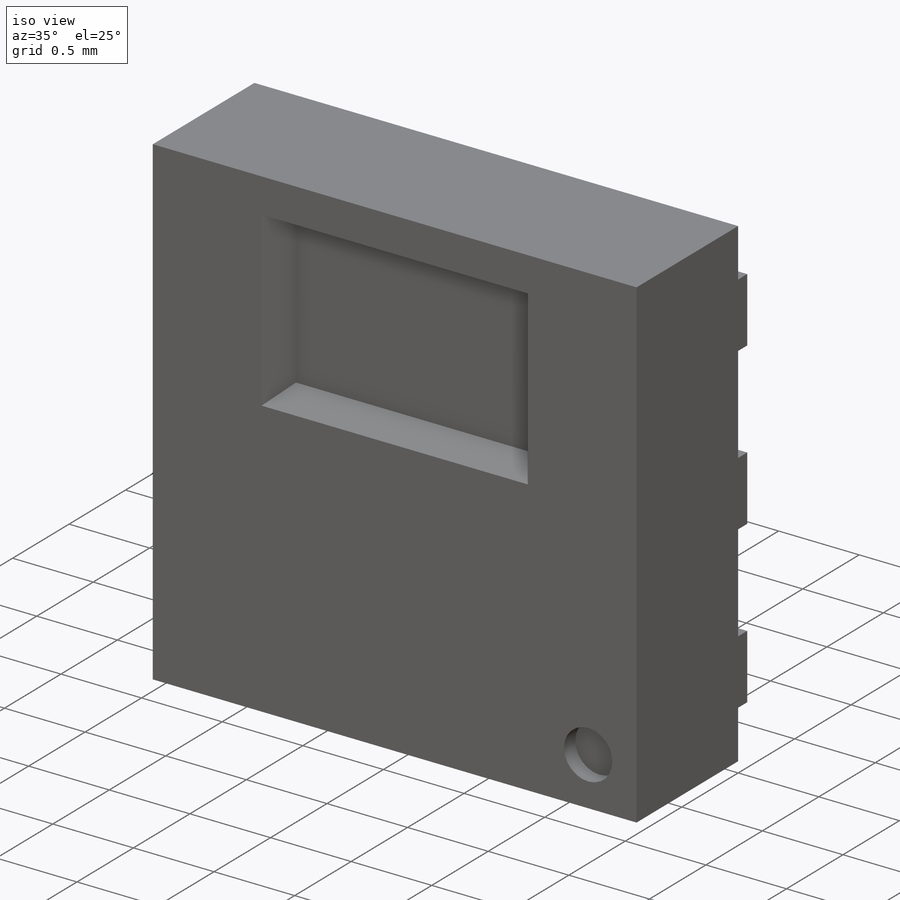
[diagram: iso view]
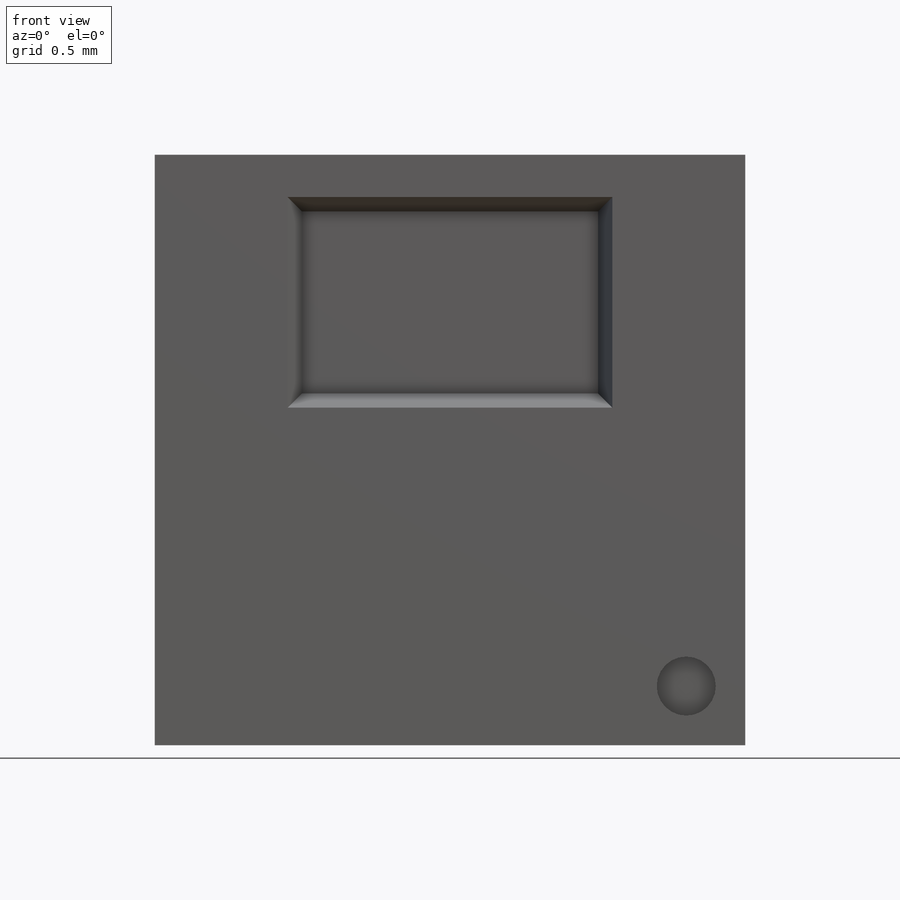
[diagram: front view]
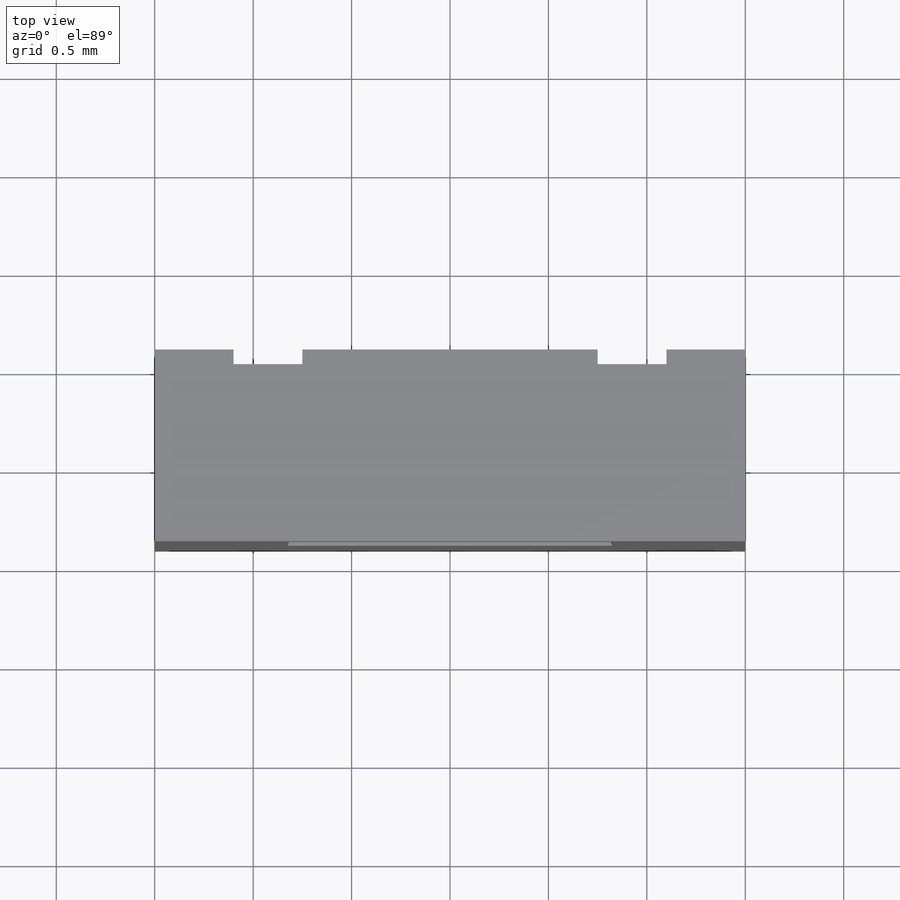
[diagram: top view]
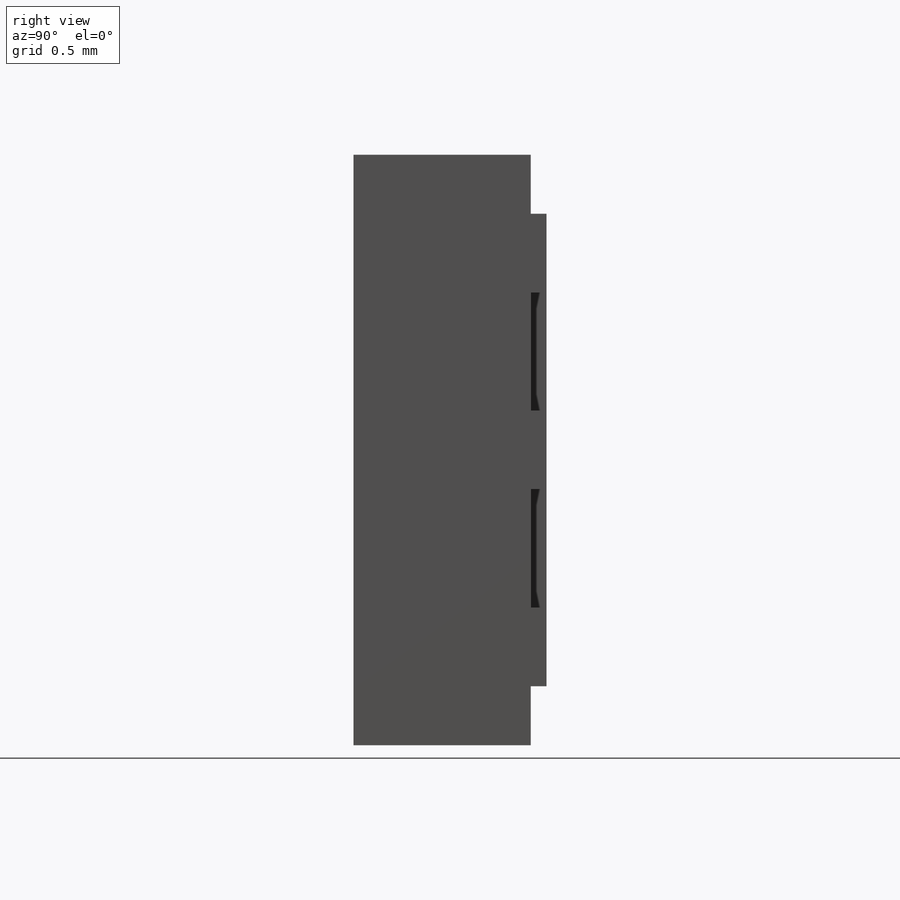
[diagram: right view]
SOLIDWORKS PART (.sldprt)
format: sldprt  version: not decoded by parser v0  size: 235,008 bytes
history: native  units: mm
features: sketch x5, extrude x3, cut_extrude x2, material x1 (+13 scaffold rows collapsed)
feature tree (24):
  scaffold x13  (default folders/planes/origin — collapsed)
  material  "Material <not specified>"
  sketch  "Sketch1"  dims[D1=3.0mm D2=3.0mm]
  extrude  "Boss-Extrude1"  Depth=0.9mm
  sketch  "Sketch2"  dims[D1=1.65mm D2=1.07mm D3=0.215mm D4=0.675mm]
  cut_extrude  "Cut-Extrude1"  Depth=0.2mm
  sketch  "Sketch3"  dims[c1.D1=1.5mm c1.D2=2.4mm c1.D3=~0.464676mm c2.D3=45.0deg c2.D4=0.4mm]
  extrude  "Boss-Extrude2"  Depth=0.08mm
  sketch  "Sketch4"  dims[D1=0.4mm D2=0.4mm D3=3.0]
  extrude  "Boss-Extrude3"  Depth=0.08mm
  sketch  "Sketch5"  dims[D3=0.3mm D1=0.3mm D2=0.3mm]
  cut_extrude  "Cut-Extrude2"  Depth=0.1mm
decode coverage: 10 of 10 modeling features carry decoded parameters
note: ~ marks probable driven/reference dimensions
note: suppression state not decoded; provenance and decode notes live in map.json
